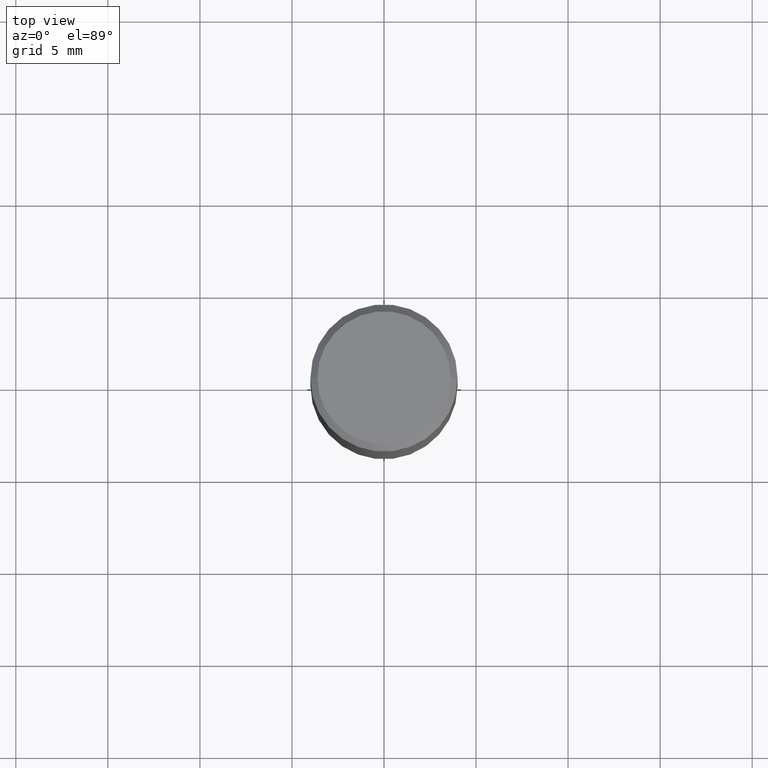
[diagram: clean part render]
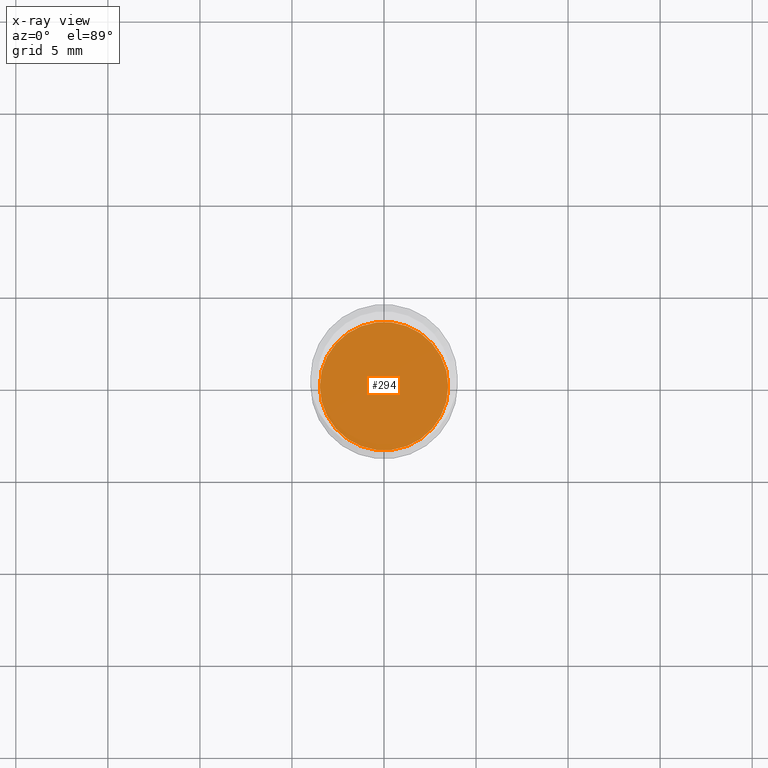
[diagram: x-ray — body ghosted, one internal face saturated and labeled with its STEP entity id]
A machine part, top view, then the same camera in x-ray: the body is ghosted and one INTERNAL B-rep face — a face not visible from any outside direction — is saturated and labeled: STEP entity #294.
In plain terms, the highlighted planar face has unit normal (-0, 0, 1).
Its self-contained STEP definition (entity closure, byte-faithful):
#2 = FACE_OUTER_BOUND ( 'NONE', #136, .T. ) ;
#8 = CARTESIAN_POINT ( 'NONE',  ( 2.512963745235846851E-29, -3.587846223795217707E-15, -1.027600000000000291 ) ) ;
#11 = CIRCLE ( 'NONE', #45, 0.1373000000000000054 ) ;
#23 = VERTEX_POINT ( 'NONE', #372 ) ;
#45 = AXIS2_PLACEMENT_3D ( 'NONE', #155, #365, #221 ) ;
#83 = DIRECTION ( 'NONE',  ( -2.445468806185136597E-29, 3.491481338843145583E-15, 1.000000000000000000 ) ) ;
#124 = PLANE ( 'NONE',  #397 ) ;
#136 = EDGE_LOOP ( 'NONE', ( #216, #382 ) ) ;
#155 = CARTESIAN_POINT ( 'NONE',  ( 2.512963745235846851E-29, -3.587846223795217707E-15, -1.027600000000000291 ) ) ;
#156 = DIRECTION ( 'NONE',  ( 1.000000000000000000, -6.982962677686266711E-15, 0.000000000000000000 ) ) ;
#194 = CIRCLE ( 'NONE', #220, 0.1373000000000000054 ) ;
#216 = ORIENTED_EDGE ( 'NONE', *, *, #301, .F. ) ;
#220 = AXIS2_PLACEMENT_3D ( 'NONE', #8, #83, #156 ) ;
#221 = DIRECTION ( 'NONE',  ( 1.000000000000000000, -6.982962677686266711E-15, 0.000000000000000000 ) ) ;
#224 = DIRECTION ( 'NONE',  ( 1.000000000000000000, -6.982962677686265922E-15, 4.876176775795935793E-29 ) ) ;
#294 = ADVANCED_FACE ( 'NONE', ( #2 ), #124, .F. ) ;
#301 = EDGE_CURVE ( 'NONE', #318, #23, #11, .T. ) ;
#318 = VERTEX_POINT ( 'NONE', #367 ) ;
#332 = DIRECTION ( 'NONE',  ( -2.438088387897960049E-29, 3.491481338843145188E-15, 1.000000000000000000 ) ) ;
#365 = DIRECTION ( 'NONE',  ( -2.445468806185136597E-29, 3.491481338843145583E-15, 1.000000000000000000 ) ) ;
#367 = CARTESIAN_POINT ( 'NONE',  ( 0.1373000000000000054, -4.546606999441542177E-15, -1.027600000000000291 ) ) ;
#372 = CARTESIAN_POINT ( 'NONE',  ( -0.1373000000000000054, -2.609621820422487927E-15, -1.027600000000000291 ) ) ;
#382 = ORIENTED_EDGE ( 'NONE', *, *, #423, .F. ) ;
#397 = AXIS2_PLACEMENT_3D ( 'NONE', #405, #332, #224 ) ;
#405 = CARTESIAN_POINT ( 'NONE',  ( 2.512963745235846851E-29, -3.587846223795217707E-15, -1.027600000000000291 ) ) ;
#423 = EDGE_CURVE ( 'NONE', #23, #318, #194, .T. ) ;